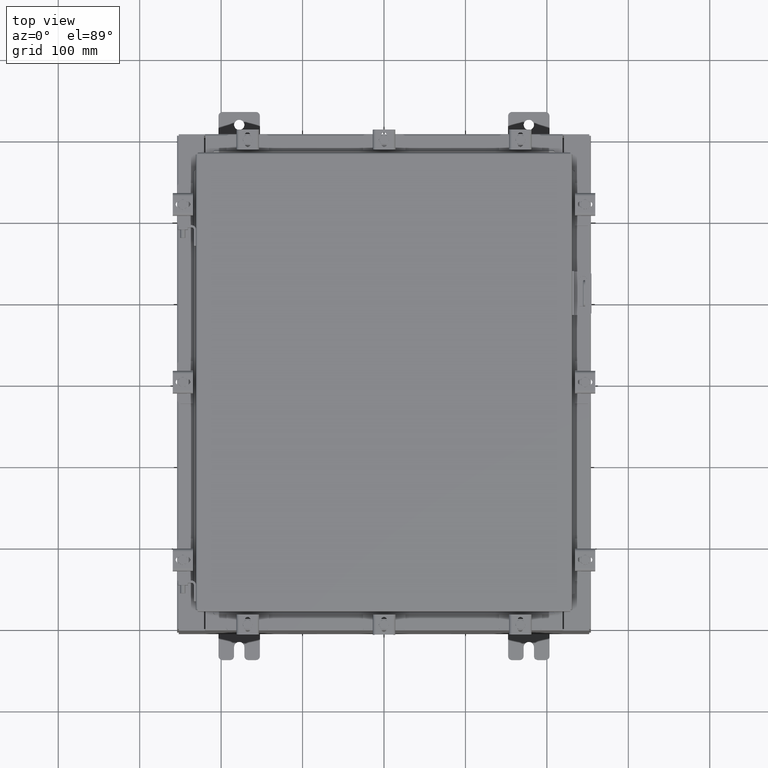
[diagram: clean part render]
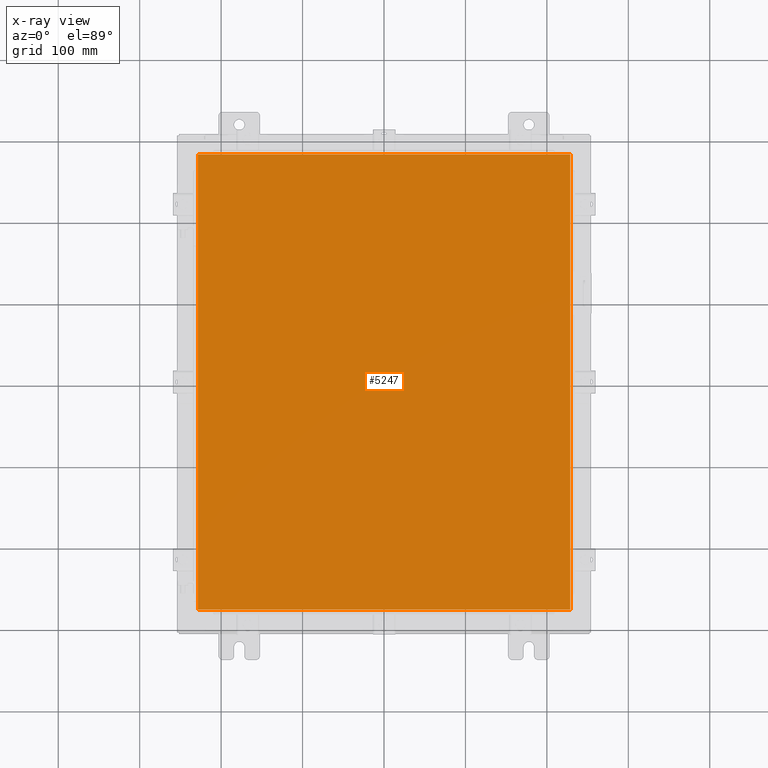
[diagram: x-ray — body ghosted, one internal face saturated and labeled with its STEP entity id]
A machine part, top view, then the same camera in x-ray: the body is ghosted and one INTERNAL B-rep face — a face not visible from any outside direction — is saturated and labeled: STEP entity #5247.
In plain terms, the highlighted planar face has unit normal (0, 0, -1).
Its self-contained STEP definition (entity closure, byte-faithful):
#259 = EDGE_CURVE ( 'NONE', #7601, #10865, #14526, .T. ) ;
#399 = VECTOR ( 'NONE', #19485, 39.37007874015748100 ) ;
#562 = CARTESIAN_POINT ( 'NONE',  ( -9.006300000000001300, 11.00630000000000100, -0.07470000000000015500 ) ) ;
#659 = CARTESIAN_POINT ( 'NONE',  ( 9.006299999999996000, 11.00630000000000100, -0.07470000000000015500 ) ) ;
#967 = DIRECTION ( 'NONE',  ( 0.0000000000000000000, 0.0000000000000000000, -1.000000000000000000 ) ) ;
#2220 = CARTESIAN_POINT ( 'NONE',  ( -9.006300000000001300, 11.00630000000000100, -0.07470000000000015500 ) ) ;
#2917 = LINE ( 'NONE', #19823, #15729 ) ;
#3510 = EDGE_LOOP ( 'NONE', ( #11122, #5131, #18277, #11703 ) ) ;
#4265 = CARTESIAN_POINT ( 'NONE',  ( -9.006300000000001300, -11.00629999999999600, -0.07470000000000015500 ) ) ;
#5131 = ORIENTED_EDGE ( 'NONE', *, *, #14096, .F. ) ;
#5247 = ADVANCED_FACE ( 'NONE', ( #5407 ), #6205, .T. ) ;
#5407 = FACE_OUTER_BOUND ( 'NONE', #3510, .T. ) ;
#5675 = EDGE_CURVE ( 'NONE', #9520, #17883, #2917, .T. ) ;
#5708 = VECTOR ( 'NONE', #10137, 39.37007874015748100 ) ;
#5798 = DIRECTION ( 'NONE',  ( 0.0000000000000000000, -1.000000000000000000, 0.0000000000000000000 ) ) ;
#6205 = PLANE ( 'NONE',  #22196 ) ;
#7601 = VERTEX_POINT ( 'NONE', #2220 ) ;
#9520 = VERTEX_POINT ( 'NONE', #20234 ) ;
#9643 = CARTESIAN_POINT ( 'NONE',  ( 0.0000000000000000000, 0.0000000000000000000, -0.07470000000000015500 ) ) ;
#9911 = VECTOR ( 'NONE', #5798, 39.37007874015748100 ) ;
#10137 = DIRECTION ( 'NONE',  ( -1.000000000000000000, -0.0000000000000000000, -0.0000000000000000000 ) ) ;
#10838 = CARTESIAN_POINT ( 'NONE',  ( -9.006300000000001300, -11.00629999999999600, -0.07470000000000015500 ) ) ;
#10865 = VERTEX_POINT ( 'NONE', #4265 ) ;
#11122 = ORIENTED_EDGE ( 'NONE', *, *, #5675, .F. ) ;
#11175 = DIRECTION ( 'NONE',  ( 0.0000000000000000000, 1.000000000000000000, 0.0000000000000000000 ) ) ;
#11703 = ORIENTED_EDGE ( 'NONE', *, *, #17486, .F. ) ;
#13227 = DIRECTION ( 'NONE',  ( -1.000000000000000000, 0.0000000000000000000, -0.0000000000000000000 ) ) ;
#14096 = EDGE_CURVE ( 'NONE', #10865, #9520, #18985, .T. ) ;
#14526 = LINE ( 'NONE', #562, #9911 ) ;
#15729 = VECTOR ( 'NONE', #11175, 39.37007874015748100 ) ;
#17486 = EDGE_CURVE ( 'NONE', #17883, #7601, #19599, .T. ) ;
#17883 = VERTEX_POINT ( 'NONE', #659 ) ;
#18277 = ORIENTED_EDGE ( 'NONE', *, *, #259, .F. ) ;
#18985 = LINE ( 'NONE', #10838, #399 ) ;
#19485 = DIRECTION ( 'NONE',  ( 1.000000000000000000, -0.0000000000000000000, -0.0000000000000000000 ) ) ;
#19599 = LINE ( 'NONE', #22247, #5708 ) ;
#19823 = CARTESIAN_POINT ( 'NONE',  ( 9.006299999999997800, -11.00629999999999600, -0.07470000000000015500 ) ) ;
#20234 = CARTESIAN_POINT ( 'NONE',  ( 9.006299999999997800, -11.00629999999999600, -0.07470000000000015500 ) ) ;
#22196 = AXIS2_PLACEMENT_3D ( 'NONE', #9643, #967, #13227 ) ;
#22247 = CARTESIAN_POINT ( 'NONE',  ( 9.006299999999997800, 11.00630000000000100, -0.07470000000000234800 ) ) ;